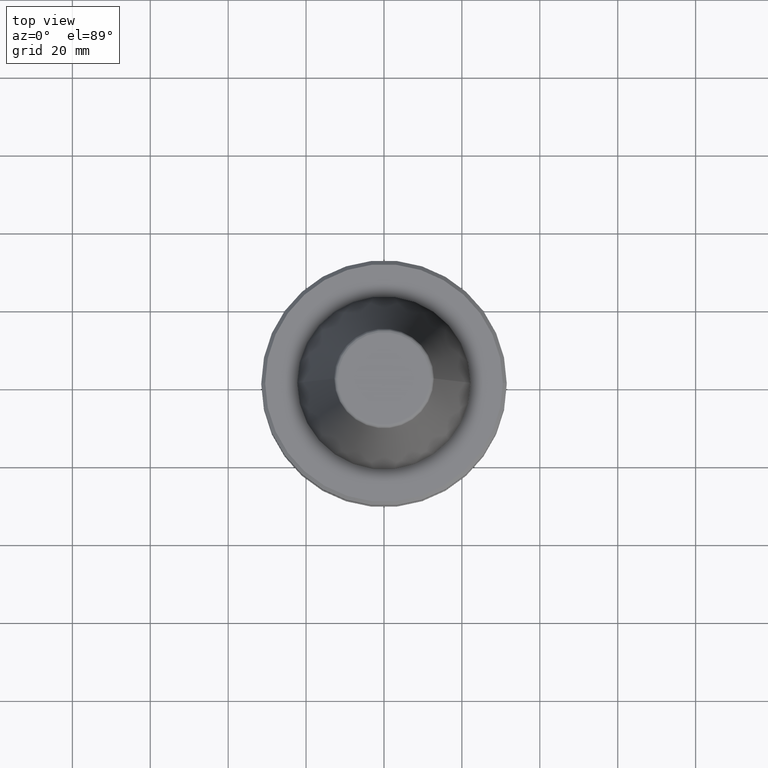
[diagram: clean part render]
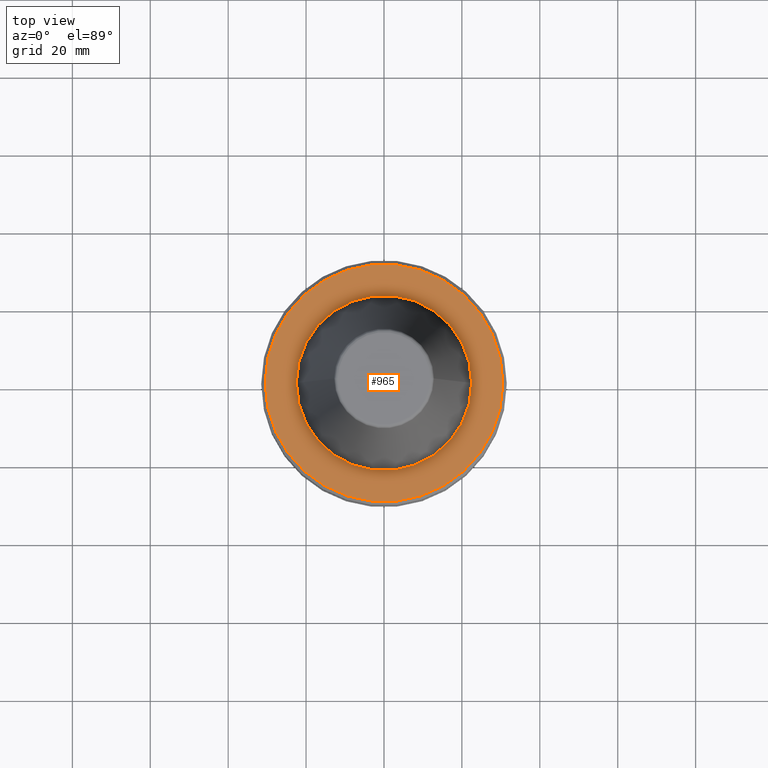
[diagram: same view with one face highlighted and labeled with its STEP entity id]
A machine part, top view. The second image highlights one B-rep face of the part: STEP entity #965.
In plain terms, the highlighted planar face has unit normal (0, 0, -1).
Its self-contained STEP definition (entity closure, byte-faithful):
#79 = ORIENTED_EDGE ( 'NONE', *, *, #865, .F. ) ;
#81 = AXIS2_PLACEMENT_3D ( 'NONE', #123, #1042, #216 ) ;
#99 = AXIS2_PLACEMENT_3D ( 'NONE', #571, #398, #126 ) ;
#123 = CARTESIAN_POINT ( 'NONE',  ( 0.0000000000000000000, 30.50000000000019200, -1.999999999999779700 ) ) ;
#126 = DIRECTION ( 'NONE',  ( 1.000000000000000000, 0.0000000000000000000, 0.0000000000000000000 ) ) ;
#152 = DIRECTION ( 'NONE',  ( 1.000000000000000000, 0.0000000000000000000, 0.0000000000000000000 ) ) ;
#159 = ORIENTED_EDGE ( 'NONE', *, *, #973, .T. ) ;
#202 = CARTESIAN_POINT ( 'NONE',  ( -22.50000000000018500, 2.755455298081567700E-015, -1.999999999999779700 ) ) ;
#216 = DIRECTION ( 'NONE',  ( -1.000000000000000000, 0.0000000000000000000, -0.0000000000000000000 ) ) ;
#227 = EDGE_CURVE ( 'NONE', #721, #478, #378, .T. ) ;
#238 = ORIENTED_EDGE ( 'NONE', *, *, #227, .T. ) ;
#243 = CARTESIAN_POINT ( 'NONE',  ( -30.50000000000019200, 0.0000000000000000000, -1.999999999999779700 ) ) ;
#318 = AXIS2_PLACEMENT_3D ( 'NONE', #638, #568, #544 ) ;
#375 = AXIS2_PLACEMENT_3D ( 'NONE', #918, #868, #537 ) ;
#376 = CIRCLE ( 'NONE', #781, 22.50000000000018500 ) ;
#378 = CIRCLE ( 'NONE', #375, 30.50000000000019200 ) ;
#398 = DIRECTION ( 'NONE',  ( -0.0000000000000000000, -0.0000000000000000000, 1.000000000000000000 ) ) ;
#431 = CARTESIAN_POINT ( 'NONE',  ( 22.50000000000018500, 0.0000000000000000000, -1.999999999999779700 ) ) ;
#467 = CARTESIAN_POINT ( 'NONE',  ( 0.0000000000000000000, 0.0000000000000000000, -1.999999999999779700 ) ) ;
#478 = VERTEX_POINT ( 'NONE', #1002 ) ;
#537 = DIRECTION ( 'NONE',  ( 1.000000000000000000, 0.0000000000000000000, 0.0000000000000000000 ) ) ;
#544 = DIRECTION ( 'NONE',  ( 1.000000000000000000, 0.0000000000000000000, 0.0000000000000000000 ) ) ;
#568 = DIRECTION ( 'NONE',  ( -0.0000000000000000000, -0.0000000000000000000, 1.000000000000000000 ) ) ;
#571 = CARTESIAN_POINT ( 'NONE',  ( 0.0000000000000000000, 0.0000000000000000000, -1.999999999999779700 ) ) ;
#603 = EDGE_LOOP ( 'NONE', ( #238, #159 ) ) ;
#611 = DIRECTION ( 'NONE',  ( -0.0000000000000000000, -0.0000000000000000000, 1.000000000000000000 ) ) ;
#638 = CARTESIAN_POINT ( 'NONE',  ( 0.0000000000000000000, 0.0000000000000000000, -1.999999999999779700 ) ) ;
#652 = ORIENTED_EDGE ( 'NONE', *, *, #1021, .F. ) ;
#721 = VERTEX_POINT ( 'NONE', #243 ) ;
#781 = AXIS2_PLACEMENT_3D ( 'NONE', #467, #611, #152 ) ;
#797 = VERTEX_POINT ( 'NONE', #202 ) ;
#819 = CIRCLE ( 'NONE', #318, 30.50000000000019200 ) ;
#848 = FACE_BOUND ( 'NONE', #1017, .T. ) ;
#865 = EDGE_CURVE ( 'NONE', #797, #1039, #908, .T. ) ;
#868 = DIRECTION ( 'NONE',  ( -0.0000000000000000000, -0.0000000000000000000, 1.000000000000000000 ) ) ;
#908 = CIRCLE ( 'NONE', #99, 22.50000000000018500 ) ;
#918 = CARTESIAN_POINT ( 'NONE',  ( 0.0000000000000000000, 0.0000000000000000000, -1.999999999999779700 ) ) ;
#965 = ADVANCED_FACE ( 'NONE', ( #848, #1032 ), #989, .F. ) ;
#973 = EDGE_CURVE ( 'NONE', #478, #721, #819, .T. ) ;
#989 = PLANE ( 'NONE',  #81 ) ;
#1002 = CARTESIAN_POINT ( 'NONE',  ( 30.50000000000019200, 3.796405077356818800E-015, -1.999999999999779700 ) ) ;
#1017 = EDGE_LOOP ( 'NONE', ( #652, #79 ) ) ;
#1021 = EDGE_CURVE ( 'NONE', #1039, #797, #376, .T. ) ;
#1032 = FACE_OUTER_BOUND ( 'NONE', #603, .T. ) ;
#1039 = VERTEX_POINT ( 'NONE', #431 ) ;
#1042 = DIRECTION ( 'NONE',  ( 0.0000000000000000000, 0.0000000000000000000, -1.000000000000000000 ) ) ;